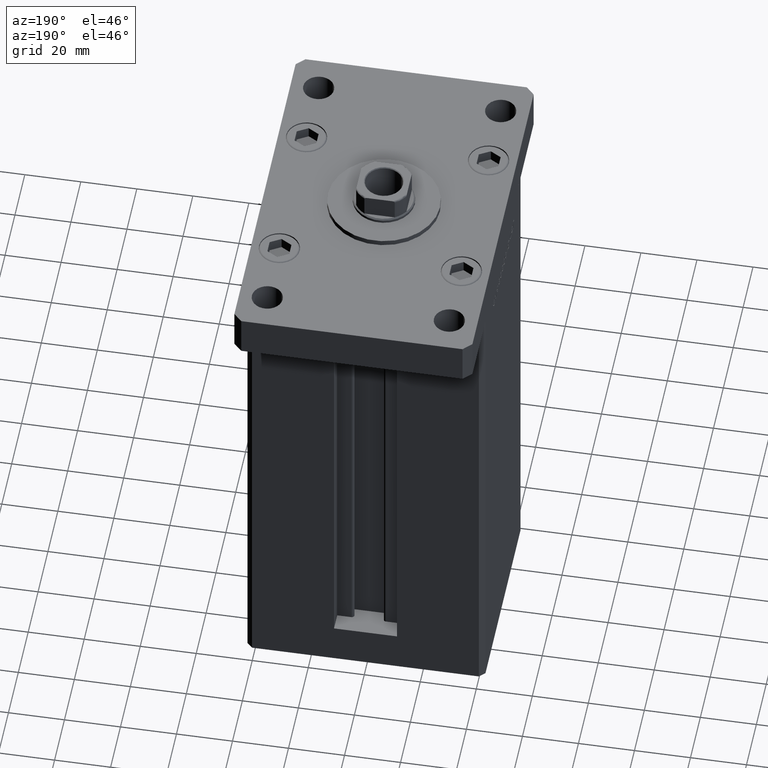
[diagram: clean part render]
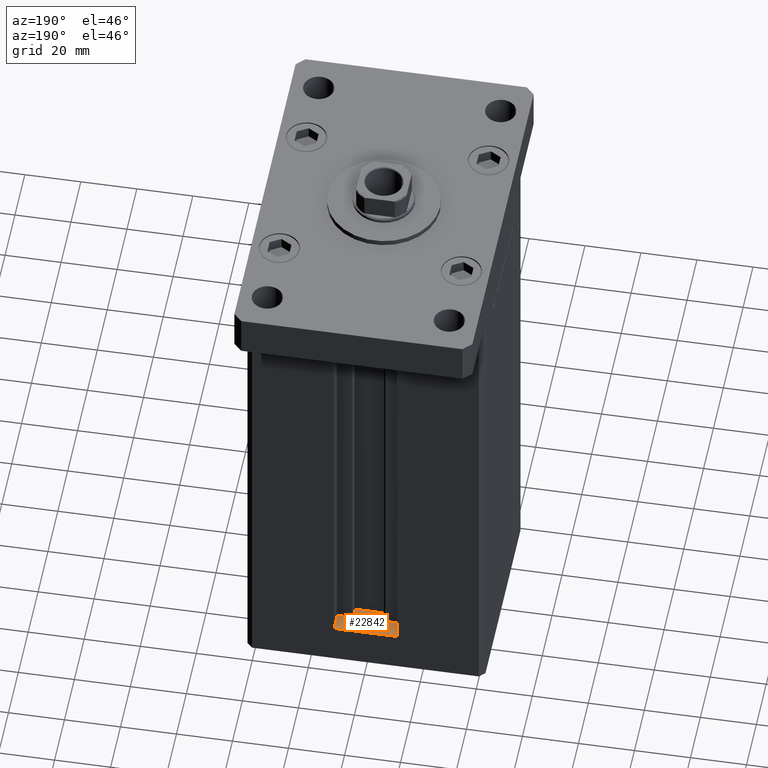
[diagram: same view with one face highlighted and labeled with its STEP entity id]
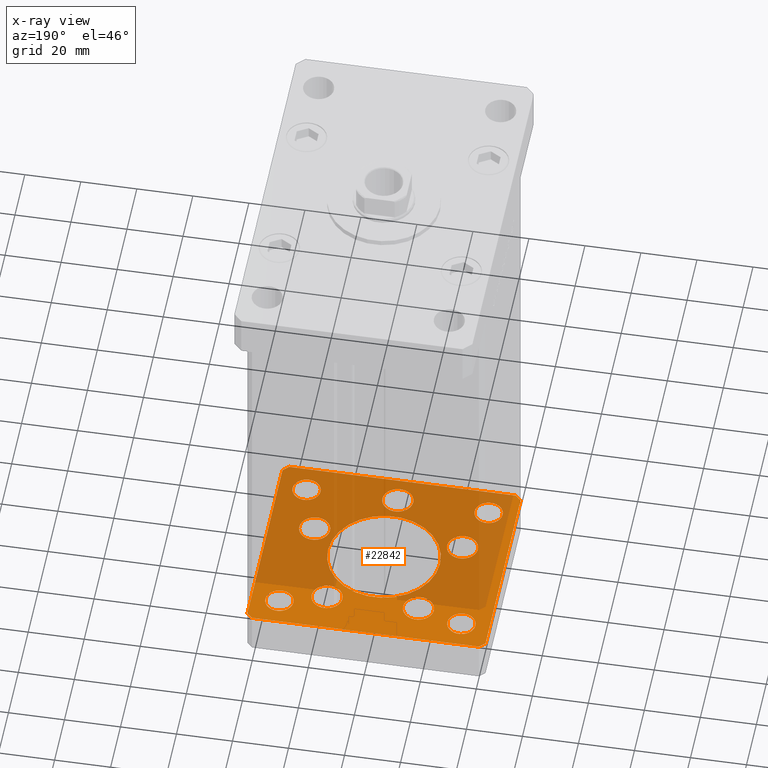
[diagram: x-ray of the same camera — body ghosted, the highlighted face saturated]
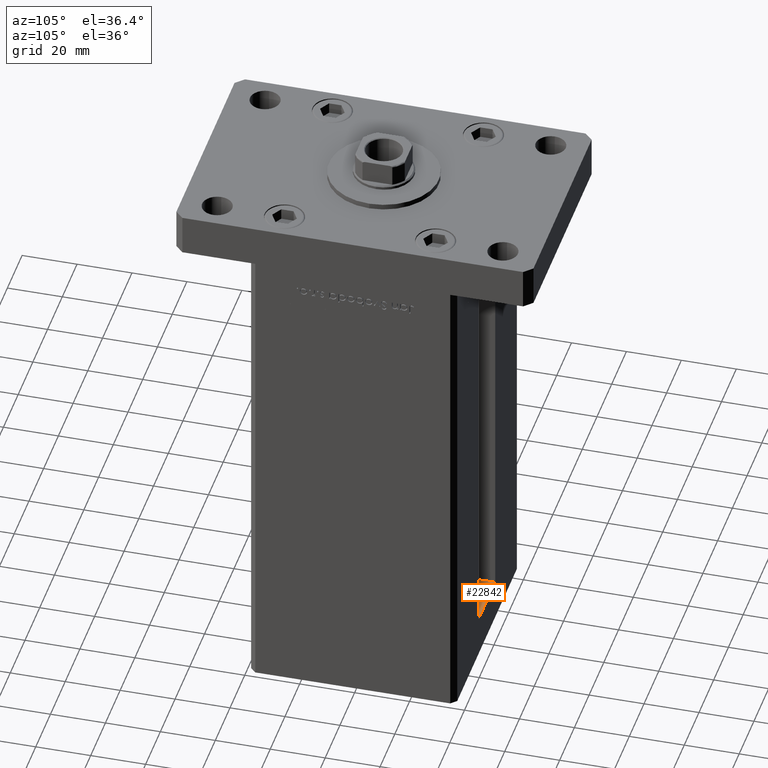
[diagram: same view with one face highlighted and labeled with its STEP entity id]
A machine part, auxiliary view. The second image highlights one B-rep face of the part: STEP entity #22842.
The next image is the same camera in x-ray: the body ghosted, the highlighted face saturated — about 68% of this face is hidden behind the body in this view.
A second angle (auxiliary view) of the same face is appended — the face is thin or edge-on in the first view.
In plain terms, the highlighted planar face has unit normal (0, 0, -1).
Its self-contained STEP definition (entity closure, byte-faithful):
#87 = EDGE_CURVE ( 'NONE', #3123, #49294, #34364, .T. ) ;
#359 = CARTESIAN_POINT ( 'NONE',  ( -20.00000000000000000, 2.449293598294706513E-15, -15.00000000000000000 ) ) ;
#369 = CARTESIAN_POINT ( 'NONE',  ( 42.49999999999992895, 35.50000000000000000, -15.00000000000000000 ) ) ;
#565 = VERTEX_POINT ( 'NONE', #33492 ) ;
#793 = CIRCLE ( 'NONE', #38887, 5.500000000000000000 ) ;
#913 = VERTEX_POINT ( 'NONE', #19514 ) ;
#1160 = FACE_BOUND ( 'NONE', #8983, .T. ) ;
#1545 = CARTESIAN_POINT ( 'NONE',  ( 20.00000000000000000, 0.000000000000000000, -15.00000000000000000 ) ) ;
#1584 = DIRECTION ( 'NONE',  ( -1.000000000000000000, -3.426614273534436165E-16, 0.000000000000000000 ) ) ;
#1690 = CIRCLE ( 'NONE', #25060, 5.500000000000001776 ) ;
#2131 = DIRECTION ( 'NONE',  ( -0.000000000000000000, -0.000000000000000000, -1.000000000000000000 ) ) ;
#2468 = EDGE_CURVE ( 'NONE', #10181, #26182, #32704, .T. ) ;
#2735 = VECTOR ( 'NONE', #23590, 1000.000000000000000 ) ;
#2782 = CARTESIAN_POINT ( 'NONE',  ( 40.50000000000000000, -37.50000000000000711, -15.00000000000000000 ) ) ;
#2974 = CARTESIAN_POINT ( 'NONE',  ( 0.000000000000000000, 0.000000000000000000, -15.00000000000000000 ) ) ;
#3123 = VERTEX_POINT ( 'NONE', #51334 ) ;
#3282 = DIRECTION ( 'NONE',  ( 0.000000000000000000, -0.000000000000000000, -1.000000000000000000 ) ) ;
#3618 = DIRECTION ( 'NONE',  ( -1.000000000000000000, 0.000000000000000000, 0.000000000000000000 ) ) ;
#3683 = CARTESIAN_POINT ( 'NONE',  ( 42.49999999999992895, 35.50000000000000000, -15.00000000000000000 ) ) ;
#3782 = ORIENTED_EDGE ( 'NONE', *, *, #44489, .F. ) ;
#3901 = EDGE_LOOP ( 'NONE', ( #35252, #47801 ) ) ;
#4671 = CARTESIAN_POINT ( 'NONE',  ( 31.89865316429776954, -9.333333333333330373, -15.00000000000000000 ) ) ;
#4698 = FACE_OUTER_BOUND ( 'NONE', #13491, .T. ) ;
#5203 = DIRECTION ( 'NONE',  ( 0.000000000000000000, -0.000000000000000000, -1.000000000000000000 ) ) ;
#5225 = DIRECTION ( 'NONE',  ( -0.000000000000000000, 0.000000000000000000, 1.000000000000000000 ) ) ;
#5501 = EDGE_CURVE ( 'NONE', #40185, #49727, #793, .T. ) ;
#5629 = ORIENTED_EDGE ( 'NONE', *, *, #10823, .F. ) ;
#5888 = VERTEX_POINT ( 'NONE', #2782 ) ;
#5904 = DIRECTION ( 'NONE',  ( 0.000000000000000000, -0.000000000000000000, -1.000000000000000000 ) ) ;
#6197 = CARTESIAN_POINT ( 'NONE',  ( -42.50000000000000000, -35.50000000000000711, -15.00000000000000000 ) ) ;
#6721 = EDGE_LOOP ( 'NONE', ( #16780, #3782 ) ) ;
#6861 = VERTEX_POINT ( 'NONE', #31812 ) ;
#6872 = CIRCLE ( 'NONE', #33729, 4.999999999999997335 ) ;
#7261 = DIRECTION ( 'NONE',  ( 1.000000000000000000, 0.000000000000000000, 0.000000000000000000 ) ) ;
#7394 = EDGE_CURVE ( 'NONE', #30791, #31664, #14610, .T. ) ;
#7658 = VERTEX_POINT ( 'NONE', #4671 ) ;
#7785 = CIRCLE ( 'NONE', #19091, 5.499999999999998224 ) ;
#8061 = DIRECTION ( 'NONE',  ( -0.000000000000000000, -0.000000000000000000, -1.000000000000000000 ) ) ;
#8076 = ORIENTED_EDGE ( 'NONE', *, *, #87, .F. ) ;
#8093 = AXIS2_PLACEMENT_3D ( 'NONE', #33194, #40770, #45639 ) ;
#8357 = DIRECTION ( 'NONE',  ( 1.000000000000000000, 0.000000000000000000, 0.000000000000000000 ) ) ;
#8611 = VERTEX_POINT ( 'NONE', #53308 ) ;
#8983 = EDGE_LOOP ( 'NONE', ( #15179, #46381 ) ) ;
#9350 = EDGE_CURVE ( 'NONE', #30458, #50323, #6872, .T. ) ;
#9571 = VERTEX_POINT ( 'NONE', #21348 ) ;
#9905 = ORIENTED_EDGE ( 'NONE', *, *, #7394, .F. ) ;
#10075 = EDGE_CURVE ( 'NONE', #49294, #3123, #7785, .T. ) ;
#10181 = VERTEX_POINT ( 'NONE', #35028 ) ;
#10265 = CARTESIAN_POINT ( 'NONE',  ( 40.49999999999991473, 37.50000000000000711, -15.00000000000000000 ) ) ;
#10370 = CIRCLE ( 'NONE', #23395, 5.000000000000000888 ) ;
#10455 = ORIENTED_EDGE ( 'NONE', *, *, #16402, .F. ) ;
#10535 = DIRECTION ( 'NONE',  ( 0.000000000000000000, -0.000000000000000000, -1.000000000000000000 ) ) ;
#10716 = LINE ( 'NONE', #34846, #43450 ) ;
#10723 = VERTEX_POINT ( 'NONE', #34833 ) ;
#10823 = EDGE_CURVE ( 'NONE', #50323, #30458, #28576, .T. ) ;
#10976 = VERTEX_POINT ( 'NONE', #17432 ) ;
#11144 = DIRECTION ( 'NONE',  ( 0.000000000000000000, 0.000000000000000000, 1.000000000000000000 ) ) ;
#11355 = CARTESIAN_POINT ( 'NONE',  ( 42.50000000000000711, -35.50000000000000000, -15.00000000000000000 ) ) ;
#11476 = EDGE_LOOP ( 'NONE', ( #8076, #30662 ) ) ;
#11544 = AXIS2_PLACEMENT_3D ( 'NONE', #18394, #5904, #51475 ) ;
#11985 = CARTESIAN_POINT ( 'NONE',  ( 16.32291334290542295, 22.75000000000000000, -15.00000000000000000 ) ) ;
#12191 = AXIS2_PLACEMENT_3D ( 'NONE', #37380, #49860, #33061 ) ;
#12336 = DIRECTION ( 'NONE',  ( 9.773090005503140331E-17, -1.000000000000000000, 0.000000000000000000 ) ) ;
#12410 = VERTEX_POINT ( 'NONE', #369 ) ;
#12634 = CARTESIAN_POINT ( 'NONE',  ( -37.50000000000000711, 27.50000000000000355, -15.00000000000000000 ) ) ;
#12643 = CIRCLE ( 'NONE', #29105, 4.999999999999997335 ) ;
#12700 = VERTEX_POINT ( 'NONE', #34996 ) ;
#12713 = AXIS2_PLACEMENT_3D ( 'NONE', #23912, #3282, #19846 ) ;
#12842 = EDGE_CURVE ( 'NONE', #7658, #8611, #40759, .T. ) ;
#12906 = CIRCLE ( 'NONE', #13795, 5.500000000000000000 ) ;
#13099 = FACE_BOUND ( 'NONE', #51201, .T. ) ;
#13372 = FACE_BOUND ( 'NONE', #6721, .T. ) ;
#13491 = EDGE_LOOP ( 'NONE', ( #16080, #37636, #38152, #9905, #51247, #17128, #10455, #28978 ) ) ;
#13795 = AXIS2_PLACEMENT_3D ( 'NONE', #31421, #10535, #47949 ) ;
#13834 = AXIS2_PLACEMENT_3D ( 'NONE', #28829, #29092, #3618 ) ;
#14017 = EDGE_CURVE ( 'NONE', #31664, #53261, #19755, .T. ) ;
#14104 = AXIS2_PLACEMENT_3D ( 'NONE', #34243, #5225, #29906 ) ;
#14269 = DIRECTION ( 'NONE',  ( 0.000000000000000000, -0.000000000000000000, -1.000000000000000000 ) ) ;
#14278 = CARTESIAN_POINT ( 'NONE',  ( 40.49999999999991473, 37.50000000000000711, -15.00000000000000000 ) ) ;
#14484 = VECTOR ( 'NONE', #32171, 1000.000000000000114 ) ;
#14514 = DIRECTION ( 'NONE',  ( 1.000000000000000000, 1.713307136767217096E-16, 0.000000000000000000 ) ) ;
#14610 = LINE ( 'NONE', #10265, #50929 ) ;
#15044 = EDGE_LOOP ( 'NONE', ( #46986, #53512 ) ) ;
#15179 = ORIENTED_EDGE ( 'NONE', *, *, #44621, .F. ) ;
#15527 = EDGE_CURVE ( 'NONE', #913, #5888, #10716, .T. ) ;
#15875 = CARTESIAN_POINT ( 'NONE',  ( -42.50000000000000711, 35.49999999999997158, -15.00000000000000000 ) ) ;
#15887 = CIRCLE ( 'NONE', #11544, 20.00000000000000000 ) ;
#16080 = ORIENTED_EDGE ( 'NONE', *, *, #26197, .F. ) ;
#16246 = AXIS2_PLACEMENT_3D ( 'NONE', #50854, #29709, #50318 ) ;
#16402 = EDGE_CURVE ( 'NONE', #5888, #12700, #17723, .T. ) ;
#16579 = VECTOR ( 'NONE', #48212, 1000.000000000000000 ) ;
#16600 = DIRECTION ( 'NONE',  ( 1.000000000000000000, 0.000000000000000000, 0.000000000000000000 ) ) ;
#16780 = ORIENTED_EDGE ( 'NONE', *, *, #5501, .F. ) ;
#17128 = ORIENTED_EDGE ( 'NONE', *, *, #50696, .F. ) ;
#17432 = CARTESIAN_POINT ( 'NONE',  ( 27.50000000000000355, 27.49999999999999645, -15.00000000000000000 ) ) ;
#17716 = FACE_BOUND ( 'NONE', #22638, .T. ) ;
#17723 = LINE ( 'NONE', #41567, #23605 ) ;
#18107 = EDGE_CURVE ( 'NONE', #565, #9571, #49592, .T. ) ;
#18394 = CARTESIAN_POINT ( 'NONE',  ( 0.000000000000000000, 0.000000000000000000, -15.00000000000000000 ) ) ;
#18411 = AXIS2_PLACEMENT_3D ( 'NONE', #22742, #2131, #18676 ) ;
#18676 = DIRECTION ( 'NONE',  ( -1.000000000000000000, 0.000000000000000000, 0.000000000000000000 ) ) ;
#19091 = AXIS2_PLACEMENT_3D ( 'NONE', #42335, #5203, #21221 ) ;
#19514 = CARTESIAN_POINT ( 'NONE',  ( -40.49999999999999289, -37.50000000000002132, -15.00000000000000000 ) ) ;
#19525 = DIRECTION ( 'NONE',  ( 0.000000000000000000, -0.000000000000000000, -1.000000000000000000 ) ) ;
#19595 = EDGE_CURVE ( 'NONE', #10723, #6861, #27008, .T. ) ;
#19755 = LINE ( 'NONE', #43333, #16579 ) ;
#19846 = DIRECTION ( 'NONE',  ( 1.000000000000000000, 0.000000000000000000, 0.000000000000000000 ) ) ;
#19899 = CIRCLE ( 'NONE', #34625, 5.500000000000000000 ) ;
#20712 = PLANE ( 'NONE',  #14104 ) ;
#21024 = LINE ( 'NONE', #33485, #43667 ) ;
#21221 = DIRECTION ( 'NONE',  ( 1.000000000000000000, 0.000000000000000000, 0.000000000000000000 ) ) ;
#21348 = CARTESIAN_POINT ( 'NONE',  ( -37.50000000000000711, -27.49999999999999645, -15.00000000000000000 ) ) ;
#21451 = VERTEX_POINT ( 'NONE', #51837 ) ;
#22299 = CARTESIAN_POINT ( 'NONE',  ( -31.89865316429776954, -9.333333333333337478, -15.00000000000000000 ) ) ;
#22638 = EDGE_LOOP ( 'NONE', ( #32312, #5629 ) ) ;
#22685 = CARTESIAN_POINT ( 'NONE',  ( 26.39865316429776954, -9.333333333333330373, -15.00000000000000000 ) ) ;
#22742 = CARTESIAN_POINT ( 'NONE',  ( -32.50000000000000000, -27.49999999999999645, -15.00000000000000000 ) ) ;
#22795 = VERTEX_POINT ( 'NONE', #359 ) ;
#22842 = ADVANCED_FACE ( 'NONE', ( #37231, #50528, #13099, #30172, #1160, #13372, #25037, #29647, #4698, #17716, #37757 ), #20712, .F. ) ;
#23062 = AXIS2_PLACEMENT_3D ( 'NONE', #22685, #14269, #51964 ) ;
#23395 = AXIS2_PLACEMENT_3D ( 'NONE', #48295, #11144, #35841 ) ;
#23514 = LINE ( 'NONE', #3683, #14484 ) ;
#23539 = AXIS2_PLACEMENT_3D ( 'NONE', #31990, #47992, #48520 ) ;
#23590 = DIRECTION ( 'NONE',  ( -1.172770800660376741E-15, 1.000000000000000000, 0.000000000000000000 ) ) ;
#23605 = VECTOR ( 'NONE', #33453, 1000.000000000000114 ) ;
#23912 = CARTESIAN_POINT ( 'NONE',  ( -26.39865316429776954, -9.333333333333337478, -15.00000000000000000 ) ) ;
#24434 = EDGE_CURVE ( 'NONE', #30047, #22795, #15887, .T. ) ;
#24485 = DIRECTION ( 'NONE',  ( 1.000000000000000000, 0.000000000000000000, 0.000000000000000000 ) ) ;
#24587 = VERTEX_POINT ( 'NONE', #12634 ) ;
#25005 = EDGE_CURVE ( 'NONE', #47675, #10976, #31495, .T. ) ;
#25037 = FACE_BOUND ( 'NONE', #15044, .T. ) ;
#25060 = AXIS2_PLACEMENT_3D ( 'NONE', #28130, #44663, #7261 ) ;
#25090 = CARTESIAN_POINT ( 'NONE',  ( -10.82291334290543183, 22.74999999999999645, -15.00000000000000000 ) ) ;
#26182 = VERTEX_POINT ( 'NONE', #52820 ) ;
#26197 = EDGE_CURVE ( 'NONE', #41195, #913, #41655, .T. ) ;
#26669 = DIRECTION ( 'NONE',  ( 1.000000000000000000, 0.000000000000000000, 0.000000000000000000 ) ) ;
#26863 = ORIENTED_EDGE ( 'NONE', *, *, #32088, .F. ) ;
#26921 = CARTESIAN_POINT ( 'NONE',  ( 27.50000000000000355, -27.49999999999999645, -15.00000000000000000 ) ) ;
#27008 = CIRCLE ( 'NONE', #36505, 5.500000000000001776 ) ;
#27264 = CARTESIAN_POINT ( 'NONE',  ( 37.50000000000000000, -27.49999999999999645, -15.00000000000000000 ) ) ;
#27318 = EDGE_CURVE ( 'NONE', #53261, #41195, #21024, .T. ) ;
#27395 = ORIENTED_EDGE ( 'NONE', *, *, #30731, .F. ) ;
#28130 = CARTESIAN_POINT ( 'NONE',  ( 16.32291334290542295, 22.75000000000000000, -15.00000000000000000 ) ) ;
#28576 = CIRCLE ( 'NONE', #13834, 4.999999999999997335 ) ;
#28829 = CARTESIAN_POINT ( 'NONE',  ( 32.50000000000000000, -27.49999999999999645, -15.00000000000000000 ) ) ;
#28978 = ORIENTED_EDGE ( 'NONE', *, *, #15527, .F. ) ;
#29092 = DIRECTION ( 'NONE',  ( -0.000000000000000000, -0.000000000000000000, -1.000000000000000000 ) ) ;
#29105 = AXIS2_PLACEMENT_3D ( 'NONE', #34520, #51073, #26669 ) ;
#29647 = FACE_BOUND ( 'NONE', #32375, .T. ) ;
#29709 = DIRECTION ( 'NONE',  ( 0.000000000000000000, -0.000000000000000000, -1.000000000000000000 ) ) ;
#29906 = DIRECTION ( 'NONE',  ( 1.000000000000000000, 0.000000000000000000, 0.000000000000000000 ) ) ;
#30047 = VERTEX_POINT ( 'NONE', #1545 ) ;
#30172 = FACE_BOUND ( 'NONE', #47317, .T. ) ;
#30458 = VERTEX_POINT ( 'NONE', #27264 ) ;
#30662 = ORIENTED_EDGE ( 'NONE', *, *, #10075, .F. ) ;
#30731 = EDGE_CURVE ( 'NONE', #22795, #30047, #32520, .T. ) ;
#30791 = VERTEX_POINT ( 'NONE', #14278 ) ;
#31421 = CARTESIAN_POINT ( 'NONE',  ( -16.32291334290543006, 22.74999999999999645, -15.00000000000000000 ) ) ;
#31495 = CIRCLE ( 'NONE', #8093, 4.999999999999997335 ) ;
#31664 = VERTEX_POINT ( 'NONE', #40707 ) ;
#31812 = CARTESIAN_POINT ( 'NONE',  ( 21.82291334290542650, 22.75000000000000000, -15.00000000000000000 ) ) ;
#31990 = CARTESIAN_POINT ( 'NONE',  ( -32.50000000000000000, -27.49999999999999645, -15.00000000000000000 ) ) ;
#32088 = EDGE_CURVE ( 'NONE', #8611, #7658, #38622, .T. ) ;
#32171 = DIRECTION ( 'NONE',  ( -0.7071067811865474617, 0.7071067811865474617, 0.000000000000000000 ) ) ;
#32312 = ORIENTED_EDGE ( 'NONE', *, *, #9350, .F. ) ;
#32352 = DIRECTION ( 'NONE',  ( 0.000000000000000000, -0.000000000000000000, -1.000000000000000000 ) ) ;
#32375 = EDGE_LOOP ( 'NONE', ( #38443, #32680 ) ) ;
#32520 = CIRCLE ( 'NONE', #39451, 20.00000000000000000 ) ;
#32623 = EDGE_CURVE ( 'NONE', #21451, #24587, #40365, .T. ) ;
#32680 = ORIENTED_EDGE ( 'NONE', *, *, #46409, .T. ) ;
#32704 = CIRCLE ( 'NONE', #16246, 5.500000000000000000 ) ;
#33061 = DIRECTION ( 'NONE',  ( 1.000000000000000000, 0.000000000000000000, 0.000000000000000000 ) ) ;
#33194 = CARTESIAN_POINT ( 'NONE',  ( 32.50000000000000000, 27.49999999999999645, -15.00000000000000000 ) ) ;
#33453 = DIRECTION ( 'NONE',  ( 0.7071067811865474617, 0.7071067811865474617, 0.000000000000000000 ) ) ;
#33485 = CARTESIAN_POINT ( 'NONE',  ( -42.50000000000000711, 35.49999999999997158, -15.00000000000000000 ) ) ;
#33492 = CARTESIAN_POINT ( 'NONE',  ( -27.50000000000000000, -27.49999999999999645, -15.00000000000000000 ) ) ;
#33729 = AXIS2_PLACEMENT_3D ( 'NONE', #44931, #8061, #48750 ) ;
#33941 = CARTESIAN_POINT ( 'NONE',  ( -32.50000000000000000, 27.50000000000000355, -15.00000000000000000 ) ) ;
#34111 = VECTOR ( 'NONE', #53618, 1000.000000000000000 ) ;
#34243 = CARTESIAN_POINT ( 'NONE',  ( 0.000000000000000000, 0.000000000000000000, -15.00000000000000000 ) ) ;
#34256 = ORIENTED_EDGE ( 'NONE', *, *, #12842, .F. ) ;
#34364 = CIRCLE ( 'NONE', #12713, 5.499999999999998224 ) ;
#34520 = CARTESIAN_POINT ( 'NONE',  ( 32.50000000000000000, 27.49999999999999645, -15.00000000000000000 ) ) ;
#34625 = AXIS2_PLACEMENT_3D ( 'NONE', #44400, #48475, #36268 ) ;
#34833 = CARTESIAN_POINT ( 'NONE',  ( 10.82291334290542473, 22.75000000000000000, -15.00000000000000000 ) ) ;
#34846 = CARTESIAN_POINT ( 'NONE',  ( -40.49999999999999289, -37.50000000000002132, -15.00000000000000000 ) ) ;
#34882 = DIRECTION ( 'NONE',  ( 1.000000000000000000, 0.000000000000000000, 0.000000000000000000 ) ) ;
#34996 = CARTESIAN_POINT ( 'NONE',  ( 42.50000000000000711, -35.50000000000000000, -15.00000000000000000 ) ) ;
#35028 = CARTESIAN_POINT ( 'NONE',  ( 5.500000000000003553, -28.00000000000000000, -15.00000000000000000 ) ) ;
#35252 = ORIENTED_EDGE ( 'NONE', *, *, #18107, .F. ) ;
#35325 = EDGE_CURVE ( 'NONE', #10976, #47675, #12643, .T. ) ;
#35841 = DIRECTION ( 'NONE',  ( 1.000000000000000000, 0.000000000000000000, 0.000000000000000000 ) ) ;
#35883 = ORIENTED_EDGE ( 'NONE', *, *, #24434, .F. ) ;
#36268 = DIRECTION ( 'NONE',  ( 1.000000000000000000, 0.000000000000000000, 0.000000000000000000 ) ) ;
#36505 = AXIS2_PLACEMENT_3D ( 'NONE', #11985, #32352, #24485 ) ;
#36513 = CIRCLE ( 'NONE', #23539, 5.000000000000004441 ) ;
#36828 = DIRECTION ( 'NONE',  ( 0.000000000000000000, -0.000000000000000000, -1.000000000000000000 ) ) ;
#36926 = DIRECTION ( 'NONE',  ( 0.000000000000000000, 0.000000000000000000, 1.000000000000000000 ) ) ;
#37231 = FACE_BOUND ( 'NONE', #45317, .T. ) ;
#37380 = CARTESIAN_POINT ( 'NONE',  ( 26.39865316429776954, -9.333333333333330373, -15.00000000000000000 ) ) ;
#37626 = CARTESIAN_POINT ( 'NONE',  ( -16.32291334290543006, 22.74999999999999645, -15.00000000000000000 ) ) ;
#37636 = ORIENTED_EDGE ( 'NONE', *, *, #27318, .F. ) ;
#37757 = FACE_BOUND ( 'NONE', #3901, .T. ) ;
#38152 = ORIENTED_EDGE ( 'NONE', *, *, #14017, .F. ) ;
#38443 = ORIENTED_EDGE ( 'NONE', *, *, #32623, .T. ) ;
#38622 = CIRCLE ( 'NONE', #23062, 5.499999999999998224 ) ;
#38887 = AXIS2_PLACEMENT_3D ( 'NONE', #37626, #36828, #8357 ) ;
#39451 = AXIS2_PLACEMENT_3D ( 'NONE', #2974, #19525, #34882 ) ;
#39835 = LINE ( 'NONE', #11355, #2735 ) ;
#40134 = EDGE_CURVE ( 'NONE', #12410, #30791, #23514, .T. ) ;
#40185 = VERTEX_POINT ( 'NONE', #25090 ) ;
#40365 = CIRCLE ( 'NONE', #43826, 5.000000000000000888 ) ;
#40707 = CARTESIAN_POINT ( 'NONE',  ( -40.50000000000000711, 37.49999999999997868, -15.00000000000000000 ) ) ;
#40759 = CIRCLE ( 'NONE', #12191, 5.499999999999998224 ) ;
#40770 = DIRECTION ( 'NONE',  ( 0.000000000000000000, 0.000000000000000000, 1.000000000000000000 ) ) ;
#41124 = CARTESIAN_POINT ( 'NONE',  ( -42.50000000000000000, -35.50000000000000711, -15.00000000000000000 ) ) ;
#41195 = VERTEX_POINT ( 'NONE', #6197 ) ;
#41567 = CARTESIAN_POINT ( 'NONE',  ( 40.50000000000000000, -37.50000000000000711, -15.00000000000000000 ) ) ;
#41655 = LINE ( 'NONE', #41124, #34111 ) ;
#42335 = CARTESIAN_POINT ( 'NONE',  ( -26.39865316429776954, -9.333333333333337478, -15.00000000000000000 ) ) ;
#43280 = CARTESIAN_POINT ( 'NONE',  ( 37.50000000000000000, 27.49999999999999645, -15.00000000000000000 ) ) ;
#43333 = CARTESIAN_POINT ( 'NONE',  ( -40.50000000000000711, 37.49999999999997868, -15.00000000000000000 ) ) ;
#43450 = VECTOR ( 'NONE', #14514, 1000.000000000000000 ) ;
#43667 = VECTOR ( 'NONE', #12336, 1000.000000000000000 ) ;
#43826 = AXIS2_PLACEMENT_3D ( 'NONE', #33941, #36926, #16600 ) ;
#44400 = CARTESIAN_POINT ( 'NONE',  ( 3.429011037612589276E-15, -28.00000000000000000, -15.00000000000000000 ) ) ;
#44489 = EDGE_CURVE ( 'NONE', #49727, #40185, #12906, .T. ) ;
#44621 = EDGE_CURVE ( 'NONE', #6861, #10723, #1690, .T. ) ;
#44663 = DIRECTION ( 'NONE',  ( 0.000000000000000000, -0.000000000000000000, -1.000000000000000000 ) ) ;
#44931 = CARTESIAN_POINT ( 'NONE',  ( 32.50000000000000000, -27.49999999999999645, -15.00000000000000000 ) ) ;
#45317 = EDGE_LOOP ( 'NONE', ( #35883, #27395 ) ) ;
#45639 = DIRECTION ( 'NONE',  ( 1.000000000000000000, 0.000000000000000000, 0.000000000000000000 ) ) ;
#46381 = ORIENTED_EDGE ( 'NONE', *, *, #19595, .F. ) ;
#46409 = EDGE_CURVE ( 'NONE', #24587, #21451, #10370, .T. ) ;
#46509 = EDGE_CURVE ( 'NONE', #26182, #10181, #19899, .T. ) ;
#46986 = ORIENTED_EDGE ( 'NONE', *, *, #25005, .T. ) ;
#47129 = ORIENTED_EDGE ( 'NONE', *, *, #46509, .F. ) ;
#47317 = EDGE_LOOP ( 'NONE', ( #34256, #26863 ) ) ;
#47675 = VERTEX_POINT ( 'NONE', #43280 ) ;
#47801 = ORIENTED_EDGE ( 'NONE', *, *, #51602, .F. ) ;
#47949 = DIRECTION ( 'NONE',  ( 1.000000000000000000, 0.000000000000000000, 0.000000000000000000 ) ) ;
#47992 = DIRECTION ( 'NONE',  ( -0.000000000000000000, -0.000000000000000000, -1.000000000000000000 ) ) ;
#48212 = DIRECTION ( 'NONE',  ( -0.7071067811865463515, -0.7071067811865487940, 0.000000000000000000 ) ) ;
#48295 = CARTESIAN_POINT ( 'NONE',  ( -32.50000000000000000, 27.50000000000000355, -15.00000000000000000 ) ) ;
#48475 = DIRECTION ( 'NONE',  ( 0.000000000000000000, -0.000000000000000000, -1.000000000000000000 ) ) ;
#48520 = DIRECTION ( 'NONE',  ( -1.000000000000000000, 0.000000000000000000, 0.000000000000000000 ) ) ;
#48750 = DIRECTION ( 'NONE',  ( -1.000000000000000000, 0.000000000000000000, 0.000000000000000000 ) ) ;
#49294 = VERTEX_POINT ( 'NONE', #22299 ) ;
#49592 = CIRCLE ( 'NONE', #18411, 5.000000000000004441 ) ;
#49727 = VERTEX_POINT ( 'NONE', #53436 ) ;
#49860 = DIRECTION ( 'NONE',  ( 0.000000000000000000, -0.000000000000000000, -1.000000000000000000 ) ) ;
#50318 = DIRECTION ( 'NONE',  ( 1.000000000000000000, 0.000000000000000000, 0.000000000000000000 ) ) ;
#50323 = VERTEX_POINT ( 'NONE', #26921 ) ;
#50528 = FACE_BOUND ( 'NONE', #11476, .T. ) ;
#50696 = EDGE_CURVE ( 'NONE', #12700, #12410, #39835, .T. ) ;
#50854 = CARTESIAN_POINT ( 'NONE',  ( 3.429011037612589276E-15, -28.00000000000000000, -15.00000000000000000 ) ) ;
#50929 = VECTOR ( 'NONE', #1584, 1000.000000000000000 ) ;
#51073 = DIRECTION ( 'NONE',  ( 0.000000000000000000, 0.000000000000000000, 1.000000000000000000 ) ) ;
#51201 = EDGE_LOOP ( 'NONE', ( #51235, #47129 ) ) ;
#51235 = ORIENTED_EDGE ( 'NONE', *, *, #2468, .F. ) ;
#51247 = ORIENTED_EDGE ( 'NONE', *, *, #40134, .F. ) ;
#51334 = CARTESIAN_POINT ( 'NONE',  ( -20.89865316429777309, -9.333333333333337478, -15.00000000000000000 ) ) ;
#51475 = DIRECTION ( 'NONE',  ( 1.000000000000000000, 0.000000000000000000, 0.000000000000000000 ) ) ;
#51602 = EDGE_CURVE ( 'NONE', #9571, #565, #36513, .T. ) ;
#51837 = CARTESIAN_POINT ( 'NONE',  ( -27.50000000000000000, 27.50000000000000355, -15.00000000000000000 ) ) ;
#51964 = DIRECTION ( 'NONE',  ( 1.000000000000000000, 0.000000000000000000, 0.000000000000000000 ) ) ;
#52820 = CARTESIAN_POINT ( 'NONE',  ( -5.499999999999996447, -28.00000000000000000, -15.00000000000000000 ) ) ;
#53261 = VERTEX_POINT ( 'NONE', #15875 ) ;
#53308 = CARTESIAN_POINT ( 'NONE',  ( 20.89865316429777309, -9.333333333333330373, -15.00000000000000000 ) ) ;
#53436 = CARTESIAN_POINT ( 'NONE',  ( -21.82291334290543361, 22.74999999999999645, -15.00000000000000000 ) ) ;
#53512 = ORIENTED_EDGE ( 'NONE', *, *, #35325, .T. ) ;
#53618 = DIRECTION ( 'NONE',  ( 0.7071067811865463515, -0.7071067811865487940, 0.000000000000000000 ) ) ;